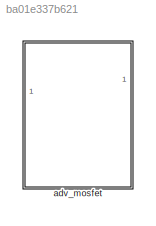
MODEL slx_ba01e337b621
KIND library
CONFIG AbsTol = auto
CONFIG EnableMultiTasking = off
CONFIG FixedStep = auto
CONFIG MaxStep = auto
CONFIG MinStep = auto
CONFIG RelTol = 1e-3
CONFIG SampleTimeConstraint = Unconstrained
CONFIG SolverName = VariableStepAuto
CONFIG StartTime = 0.0
CONFIG StopTime = 10.0
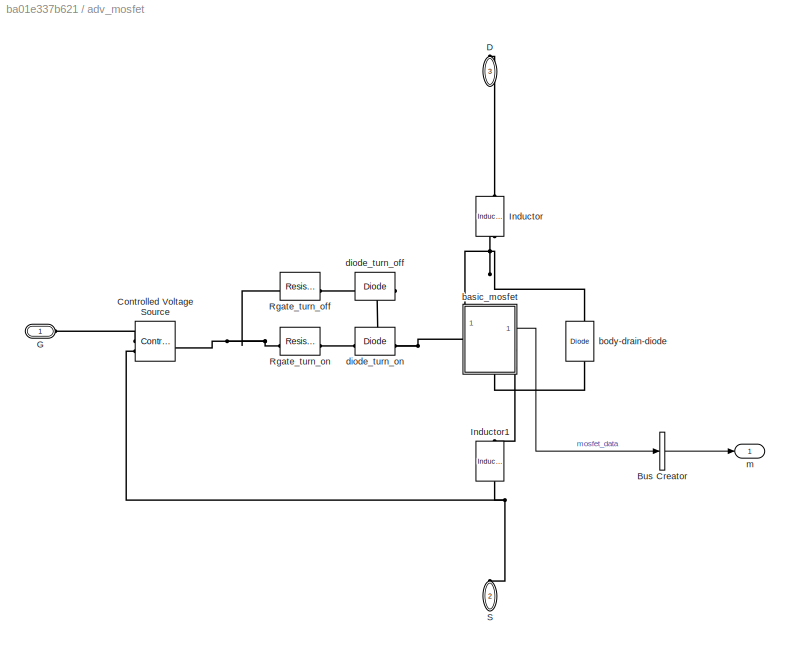
BLOCK [SubSystem] adv_mosfet
  PortSchema = {"entries":[{"content":{"sides":[{"content":{"connectorIds":["LConn1"]},"type":"ConnectorPlacement.EquallySpacedRectSide","uuid":"325dc963-858c-47f0-8995-f323ab4d9c46"},{"content":{"connectorIds":["Out1"],"side":"RIGHT"},"type":"ConnectorPlacement.EquallySpacedRectSide","uuid":"e9e66084-ecb2-40fb-9a1e-77677e0cc1df"},{"content":{"connectorIds":["LConn2"],"side":"TOP"},"type":"ConnectorPlacement.Equ...<+403ch>
BLOCK [BusCreator] adv_mosfet/Bus Creator
  DisplayOption = bar
  InheritFromInputs = on
  Inputs = 1
BLOCK [Reference] adv_mosfet/Controlled Voltage Source  REF=fl_lib/Electrical/Electrical Sources/Controlled Voltage
Source
  SourceBlock = fl_lib/Electrical/Electrical Sources/Controlled Voltage\nSource
  SourceType = Controlled Voltage\nSource
BLOCK [PMIOPort] adv_mosfet/D
  NameLocation = left
  Port = 3
  Side = Right
BLOCK [PMIOPort] adv_mosfet/G
  Side = Left
BLOCK [Reference] adv_mosfet/Inductor  REF=fl_lib/Electrical/Electrical Elements/Inductor
  NameLocation = left
  SourceBlock = fl_lib/Electrical/Electrical Elements/Inductor
  SourceType = Inductor
BLOCK [Reference] adv_mosfet/Inductor1  REF=fl_lib/Electrical/Electrical Elements/Inductor
  NameLocation = left
  SourceBlock = fl_lib/Electrical/Electrical Elements/Inductor
  SourceType = Inductor
BLOCK [Reference] adv_mosfet/Rgate_turn_off  REF=fl_lib/Electrical/Electrical Elements/Resistor
  SourceBlock = fl_lib/Electrical/Electrical Elements/Resistor
  SourceType = Resistor
BLOCK [Reference] adv_mosfet/Rgate_turn_on  REF=fl_lib/Electrical/Electrical Elements/Resistor
  SourceBlock = fl_lib/Electrical/Electrical Elements/Resistor
  SourceType = Resistor
BLOCK [PMIOPort] adv_mosfet/S
  NameLocation = right
  Port = 2
  Side = Left
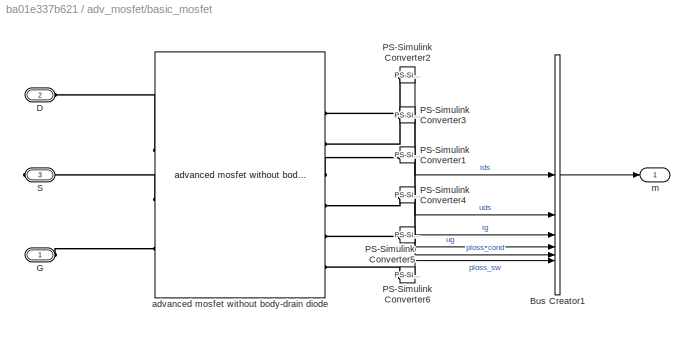
BLOCK [SubSystem] adv_mosfet/basic_mosfet
  PortSchema = {"entries":[{"content":{"sides":[{"content":{"connectorIds":["LConn1"]},"type":"ConnectorPlacement.EquallySpacedRectSide","uuid":"325dc963-858c-47f0-8995-f323ab4d9c46"},{"content":{"connectorIds":["Out1"],"side":"RIGHT"},"type":"ConnectorPlacement.EquallySpacedRectSide","uuid":"e9e66084-ecb2-40fb-9a1e-77677e0cc1df"},{"content":{"connectorIds":["LConn2"],"side":"TOP"},"type":"ConnectorPlacement.Equ...<+403ch>
BLOCK [BusCreator] adv_mosfet/basic_mosfet/Bus Creator1
  DisplayOption = bar
  InheritFromInputs = on
  Inputs = 6
BLOCK [PMIOPort] adv_mosfet/basic_mosfet/D
  Port = 2
  Side = Left
BLOCK [PMIOPort] adv_mosfet/basic_mosfet/G
  Side = Left
BLOCK [Reference] adv_mosfet/basic_mosfet/PS-Simulink Converter1  REF=nesl_utility/PS-Simulink
Converter
  SourceBlock = nesl_utility/PS-Simulink\nConverter
  SourceType = PS-Simulink\nConverter
BLOCK [Reference] adv_mosfet/basic_mosfet/PS-Simulink Converter2  REF=nesl_utility/PS-Simulink
Converter
  SourceBlock = nesl_utility/PS-Simulink\nConverter
  SourceType = PS-Simulink\nConverter
BLOCK [Reference] adv_mosfet/basic_mosfet/PS-Simulink Converter3  REF=nesl_utility/PS-Simulink
Converter
  SourceBlock = nesl_utility/PS-Simulink\nConverter
  SourceType = PS-Simulink\nConverter
BLOCK [Reference] adv_mosfet/basic_mosfet/PS-Simulink Converter4  REF=nesl_utility/PS-Simulink
Converter
  SourceBlock = nesl_utility/PS-Simulink\nConverter
  SourceType = PS-Simulink\nConverter
BLOCK [Reference] adv_mosfet/basic_mosfet/PS-Simulink Converter5  REF=nesl_utility/PS-Simulink
Converter
  SourceBlock = nesl_utility/PS-Simulink\nConverter
  SourceType = PS-Simulink\nConverter
BLOCK [Reference] adv_mosfet/basic_mosfet/PS-Simulink Converter6  REF=nesl_utility/PS-Simulink
Converter
  SourceBlock = nesl_utility/PS-Simulink\nConverter
  SourceType = PS-Simulink\nConverter
BLOCK [PMIOPort] adv_mosfet/basic_mosfet/S
  Port = 3
  Side = Right
BLOCK [Reference] adv_mosfet/basic_mosfet/advanced mosfet without body-drain diode  REF=advanced_mosfet_lib/advanced mosfet
without body-drain
diode
  SourceBlock = advanced_mosfet_lib/advanced mosfet\nwithout body-drain\ndiode
  SourceType = advanced mosfet\nwithout body-drain\ndiode
BLOCK [Outport] adv_mosfet/basic_mosfet/m
BLOCK [Reference] adv_mosfet/body-drain-diode  REF=fl_lib/Electrical/Electrical Elements/Diode
  NameLocation = right
  SourceBlock = fl_lib/Electrical/Electrical Elements/Diode
  SourceType = Diode
BLOCK [Reference] adv_mosfet/diode_turn_off  REF=fl_lib/Electrical/Electrical Elements/Diode
  NameLocation = top
  SourceBlock = fl_lib/Electrical/Electrical Elements/Diode
  SourceType = Diode
BLOCK [Reference] adv_mosfet/diode_turn_on  REF=fl_lib/Electrical/Electrical Elements/Diode
  SourceBlock = fl_lib/Electrical/Electrical Elements/Diode
  SourceType = Diode
BLOCK [Outport] adv_mosfet/m
LINE adv_mosfet/Bus Creator:1 -> adv_mosfet/m:1
LINE adv_mosfet/basic_mosfet/Bus Creator1:1 -> adv_mosfet/basic_mosfet/m:1
LINE adv_mosfet/basic_mosfet/PS-Simulink Converter1:1 -> adv_mosfet/basic_mosfet/Bus Creator1:3
LINE adv_mosfet/basic_mosfet/PS-Simulink Converter2:1 -> adv_mosfet/basic_mosfet/Bus Creator1:1
LINE adv_mosfet/basic_mosfet/PS-Simulink Converter3:1 -> adv_mosfet/basic_mosfet/Bus Creator1:2
LINE adv_mosfet/basic_mosfet/PS-Simulink Converter4:1 -> adv_mosfet/basic_mosfet/Bus Creator1:4
LINE adv_mosfet/basic_mosfet/PS-Simulink Converter5:1 -> adv_mosfet/basic_mosfet/Bus Creator1:5
LINE adv_mosfet/basic_mosfet/PS-Simulink Converter6:1 -> adv_mosfet/basic_mosfet/Bus Creator1:6
LINE adv_mosfet/basic_mosfet:1 -> adv_mosfet/Bus Creator:1
PNET net1: adv_mosfet/Controlled Voltage Source:LConn1 -- adv_mosfet/Rgate_turn_off:LConn1 -- adv_mosfet/Rgate_turn_on:LConn1
PLINE adv_mosfet/Controlled Voltage Source:RConn1 -- adv_mosfet/G:RConn1
PNET net2: adv_mosfet/Controlled Voltage Source:RConn2 -- adv_mosfet/Inductor1:RConn1 -- adv_mosfet/S:RConn1
PLINE adv_mosfet/D:RConn1 -- adv_mosfet/Inductor:LConn1
PNET net3: adv_mosfet/Inductor1:LConn1 -- adv_mosfet/basic_mosfet:RConn1 -- adv_mosfet/body-drain-diode:LConn1
PNET net4: adv_mosfet/Inductor:RConn1 -- adv_mosfet/basic_mosfet:LConn2 -- adv_mosfet/body-drain-diode:RConn1
PLINE adv_mosfet/Rgate_turn_off:RConn1 -- adv_mosfet/diode_turn_off:RConn1
PLINE adv_mosfet/Rgate_turn_on:RConn1 -- adv_mosfet/diode_turn_on:LConn1
PLINE adv_mosfet/basic_mosfet/D:RConn1 -- adv_mosfet/basic_mosfet/advanced mosfet without body-drain diode:LConn1
PLINE adv_mosfet/basic_mosfet/G:RConn1 -- adv_mosfet/basic_mosfet/advanced mosfet without body-drain diode:LConn3
PLINE adv_mosfet/basic_mosfet/PS-Simulink Converter1:LConn1 -- adv_mosfet/basic_mosfet/advanced mosfet without body-drain diode:RConn3
PLINE adv_mosfet/basic_mosfet/PS-Simulink Converter2:LConn1 -- adv_mosfet/basic_mosfet/advanced mosfet without body-drain diode:RConn1
PLINE adv_mosfet/basic_mosfet/PS-Simulink Converter3:LConn1 -- adv_mosfet/basic_mosfet/advanced mosfet without body-drain diode:RConn2
PLINE adv_mosfet/basic_mosfet/PS-Simulink Converter4:LConn1 -- adv_mosfet/basic_mosfet/advanced mosfet without body-drain diode:RConn4
PLINE adv_mosfet/basic_mosfet/PS-Simulink Converter5:LConn1 -- adv_mosfet/basic_mosfet/advanced mosfet without body-drain diode:RConn5
PLINE adv_mosfet/basic_mosfet/PS-Simulink Converter6:LConn1 -- adv_mosfet/basic_mosfet/advanced mosfet without body-drain diode:RConn6
PLINE adv_mosfet/basic_mosfet/S:RConn1 -- adv_mosfet/basic_mosfet/advanced mosfet without body-drain diode:LConn2
PNET net5: adv_mosfet/basic_mosfet:LConn1 -- adv_mosfet/diode_turn_off:LConn1 -- adv_mosfet/diode_turn_on:RConn1
note: PNET lines group multi-terminal physical nets as a canonical sorted terminal list (undirected conserving connections); 2-terminal nets keep the pairwise PLINE form
